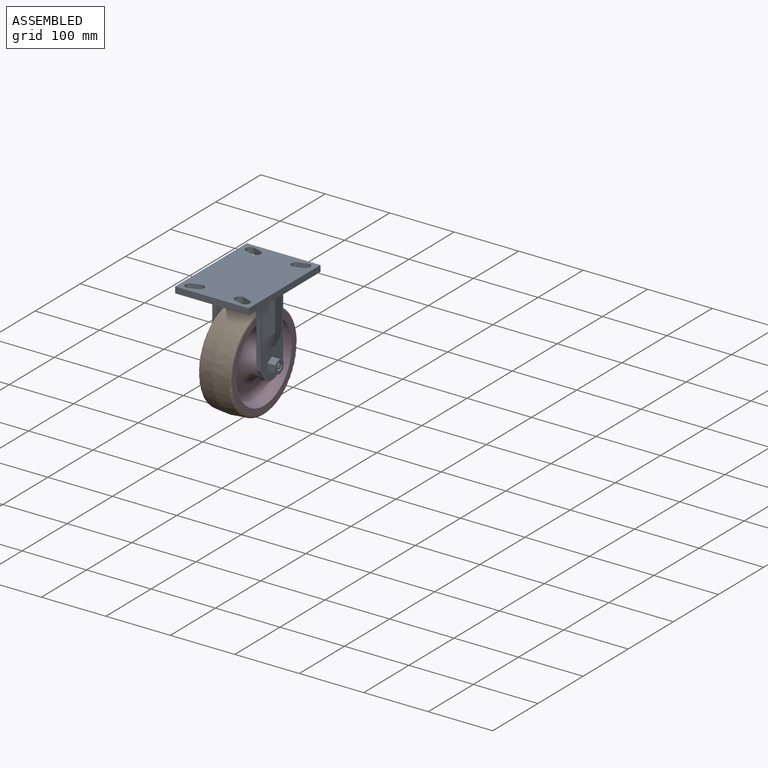
[diagram: assembled view]
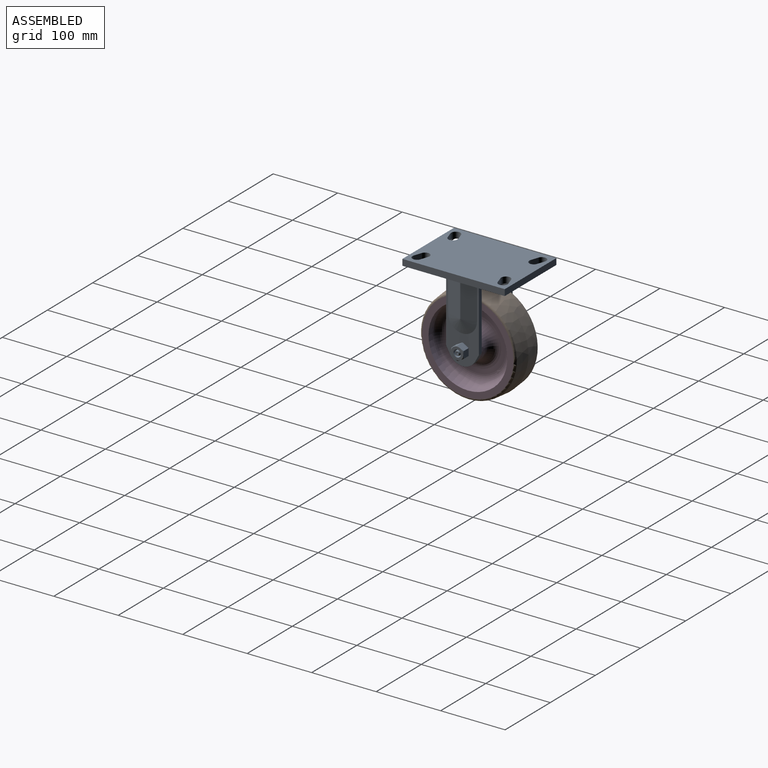
[diagram: assembled view, second angle]
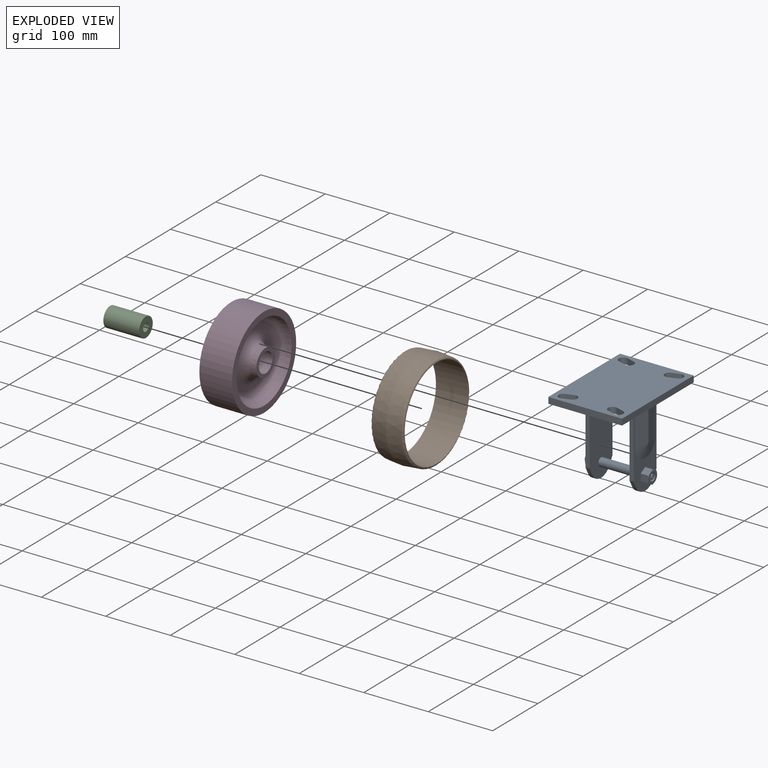
[diagram: exploded view]
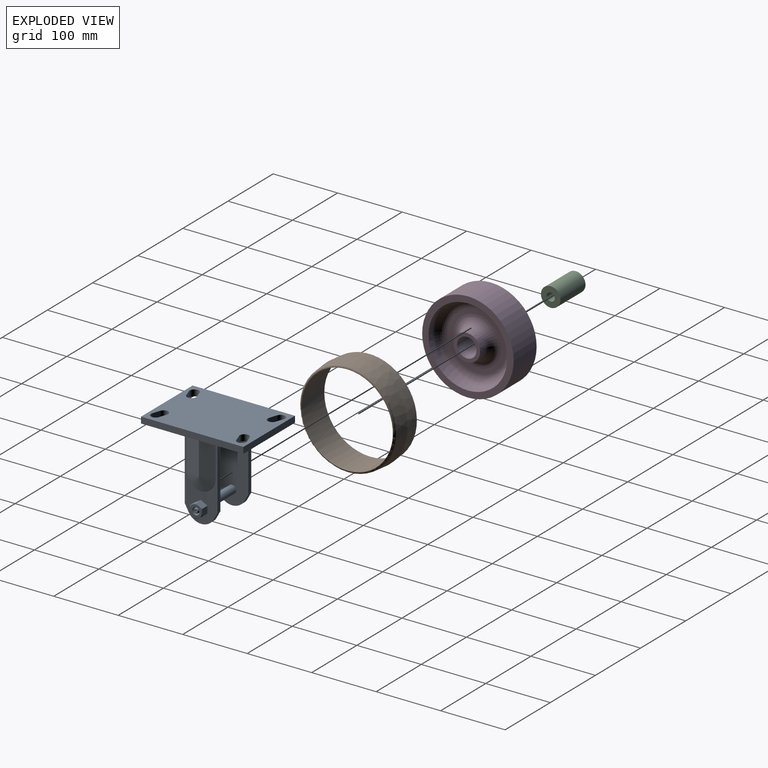
[diagram: exploded view, second angle]
ASSEMBLY  parts=4 mates=3
PART A: 83 faces, bbox 114.3x158.8x136.7 mm
  f0: plane 127.03x50.8mm, normal (1,0,0), area 2391.2mm2, adj f3,f15,f16,f17,f18,f19,f54,f55
  f1: plane 127.03x50.8mm, normal (-1,0,0), area 2391.2mm2, adj f3,f9,f10,f11,f12,f13,f38,f39
  f2: plane 19.05x19.05mm, normal (1,0,0), area 184.3mm2, adj f60,f61,f62,f63,f64,f65,f66
  f3: plane 158.75x114.3mm, normal (0,0,-1), area 15922mm2, adj f0,f1,f4,f5,f6,f7,f9,f13
  f4: plane 114.3x9.65mm, normal (0,1,0), area 1103.2mm2, adj f3,f5,f7,f8
  f5: plane 158.75x9.65mm, normal (-1,0,0), area 1532.3mm2, adj f3,f4,f6,f8
  f6: plane 114.3x9.65mm, normal (0,-1,0), area 1103.2mm2, adj f3,f5,f7,f8
  f7: plane 158.75x9.65mm, normal (1,0,0), area 1532.3mm2, adj f3,f4,f6,f8
  f8: plane 158.75x114.3mm, normal (0,0,1), area 16794.3mm2, adj f4,f5,f6,f7,f21,f22,f23,f24
  f9: plane 104.67x6.35mm, normal (0,1,0), area 664.7mm2, adj f1,f3,f10,f14
  f10: plane 10.62x6.35mm, normal (0,0.88,-0.47), area 76.6mm2, adj f1,f9,f11,f14
  f11: cylinder r=22.35mm len=39.34mm, axis (1,0,0), area 305.4mm2, adj f1,f10,f12,f14
  f12: plane 10.62x6.35mm, normal (0,-0.88,-0.47), area 76.6mm2, adj f1,f11,f13,f14
  f13: plane 104.67x6.35mm, normal (0,-1,0), area 664.7mm2, adj f1,f3,f12,f14
  f14: plane 127.03x50.8mm, normal (1,0,0), area 5997.9mm2, adj f3,f9,f10,f11,f12,f13,f37
  f15: plane 104.67x6.35mm, normal (0,1,0), area 664.7mm2, adj f0,f3,f16,f20
  f16: plane 10.62x6.35mm, normal (0,0.88,-0.47), area 76.6mm2, adj f0,f15,f17,f20
  f17: cylinder r=22.35mm len=39.34mm, axis (-1,0,0), area 305.4mm2, adj f0,f16,f18,f20
  f18: plane 10.62x6.35mm, normal (0,-0.88,-0.47), area 76.6mm2, adj f0,f17,f19,f20
  f19: plane 104.67x6.35mm, normal (0,-1,0), area 664.7mm2, adj f0,f3,f18,f20
  f20: plane 127.03x50.8mm, normal (-1,0,0), area 5997.9mm2, adj f3,f15,f16,f17,f18,f19,f37
  f21: plane 11.94x9.65mm, normal (-0.31,0.95,0), area 121.3mm2, adj f3,f8,f22,f24
  f22: cylinder r=7.11mm len=13.87mm, axis (0,0,1), area 215.7mm2, adj f3,f8,f21,f23
  f23: plane 11.94x9.65mm, normal (0.31,-0.95,0), area 121.3mm2, adj f3,f8,f22,f24
  f24: cylinder r=7.11mm len=13.87mm, axis (0,0,1), area 215.7mm2, adj f3,f8,f21,f23
  f25: plane 11.94x9.65mm, normal (-0.31,-0.95,0), area 121.3mm2, adj f3,f8,f26,f28
  f26: cylinder r=7.11mm len=13.87mm, axis (0,0,1), area 215.7mm2, adj f3,f8,f25,f27
  f27: plane 11.94x9.65mm, normal (0.31,0.95,0), area 121.3mm2, adj f3,f8,f26,f28
  f28: cylinder r=7.11mm len=13.87mm, axis (0,0,1), area 215.7mm2, adj f3,f8,f25,f27
  f29: plane 11.94x9.65mm, normal (-0.31,-0.95,0), area 121.3mm2, adj f3,f8,f30,f32
  f30: cylinder r=7.11mm len=13.87mm, axis (0,0,1), area 215.7mm2, adj f3,f8,f29,f31
  f31: plane 11.94x9.65mm, normal (0.31,0.95,0), area 121.3mm2, adj f3,f8,f30,f32
  f32: cylinder r=7.11mm len=13.87mm, axis (0,0,1), area 215.7mm2, adj f3,f8,f29,f31
  f33: plane 11.94x9.65mm, normal (-0.31,0.95,0), area 121.3mm2, adj f3,f8,f34,f36
  f34: cylinder r=7.11mm len=13.87mm, axis (0,0,1), area 215.7mm2, adj f3,f8,f33,f35
  f35: plane 11.94x9.65mm, normal (0.31,-0.95,0), area 121.3mm2, adj f3,f8,f34,f36
  f36: cylinder r=7.11mm len=13.87mm, axis (0,0,1), area 215.7mm2, adj f3,f8,f33,f35
  f37: cylinder r=6.35mm len=61.93mm, axis (-1,0,0), area 2470.7mm2, adj f14,f20
  f38: plane 11.94x11.01mm, normal (0,1,0), area 128.1mm2, adj f1,f39,f43,f47,f48
  f39: plane 11.94x9.53mm, normal (0,0.5,0.87), area 128.1mm2, adj f1,f38,f40,f48,f49
  f40: plane 11.94x9.53mm, normal (0,-0.5,0.87), area 128.1mm2, adj f1,f39,f41,f49,f50
  f41: plane 11.94x11.01mm, normal (0,-1,0), area 128.1mm2, adj f1,f40,f42,f50,f51
  f42: plane 11.94x9.53mm, normal (0,-0.5,-0.87), area 128.1mm2, adj f1,f41,f43,f51,f53
  f43: plane 11.94x9.53mm, normal (0,0.5,-0.87), area 128.1mm2, adj f1,f38,f42,f47,f53
  f44: plane 11.19x11.19mm, normal (-1,0,0), area 98.3mm2, adj f45
  f45: cone r=6.35mm half-angle=45deg, axis (1,0,0), area 40.1mm2, adj f44,f46
  f46: cylinder r=6.35mm len=12.7mm, axis (-1,0,0), area 96.5mm2, adj f45,f52
  f47: cone r=11.43mm half-angle=60deg, axis (1,0,0), area 5.6mm2, adj f38,f43,f52
  f48: cone r=11.43mm half-angle=60deg, axis (1,0,0), area 5.6mm2, adj f38,f39,f52
  f49: cone r=11.43mm half-angle=60deg, axis (1,0,0), area 5.6mm2, adj f39,f40,f52
  f50: cone r=11.43mm half-angle=60deg, axis (1,0,0), area 5.6mm2, adj f40,f41,f52
  f51: cone r=11.43mm half-angle=60deg, axis (1,0,0), area 5.6mm2, adj f41,f42,f52
  f52: plane 19.05x19.05mm, normal (-1,0,0), area 158.3mm2, adj f46,f47,f48,f49,f50,f51,f53
  f53: cone r=11.43mm half-angle=60deg, axis (1,0,0), area 5.6mm2, adj f42,f43,f52
  f54: plane 11.94x11.01mm, normal (0,1,0), area 128.1mm2, adj f0,f55,f59,f63,f64
  f55: plane 11.94x9.53mm, normal (0,0.5,0.87), area 128.1mm2, adj f0,f54,f56,f62,f63
  f56: plane 11.94x9.53mm, normal (0,-0.5,0.87), area 128.1mm2, adj f0,f55,f57,f61,f62
  f57: plane 11.94x11.01mm, normal (0,-1,0), area 128.1mm2, adj f0,f56,f58,f60,f61
  f58: plane 11.94x9.53mm, normal (0,-0.5,-0.87), area 128.1mm2, adj f0,f57,f59,f60,f65
  f59: plane 11.94x9.53mm, normal (0,0.5,-0.87), area 128.1mm2, adj f0,f54,f58,f64,f65
  f60: cone r=9.53mm half-angle=60deg, axis (-1,0,0), area 5.6mm2, adj f2,f57,f58
  f61: cone r=9.53mm half-angle=60deg, axis (-1,0,0), area 5.6mm2, adj f2,f56,f57
  f62: cone r=9.53mm half-angle=60deg, axis (-1,0,0), area 5.6mm2, adj f2,f55,f56
  f63: cone r=9.53mm half-angle=60deg, axis (-1,0,0), area 5.6mm2, adj f2,f54,f55
  f64: cone r=9.53mm half-angle=60deg, axis (-1,0,0), area 5.6mm2, adj f2,f54,f59
  f65: cone r=9.53mm half-angle=60deg, axis (-1,0,0), area 5.6mm2, adj f2,f58,f59
  f66: cylinder r=5.66mm len=11.33mm, axis (-1,0,0), area 283.2mm2, adj f2,f67
  f67: plane 11.33x11.33mm, normal (1,0,0), area 55.1mm2, adj f66,f68
  f68: cylinder r=3.81mm len=7.62mm, axis (-1,0,0), area 30.4mm2, adj f67,f69
  f69: plane 7.62x7.62mm, normal (1,0,0), area 16.4mm2, adj f68,f70
  f70: torus R=3.05mm, axis (-1,0,0), area 13.7mm2, adj f69,f71
  f71: cylinder r=2.54mm len=5.08mm, axis (-1,0,0), area 4.1mm2, adj f70,f72
  f72: torus R=3.05mm, axis (-1,0,0), area 13.7mm2, adj f71,f73
  f73: revolved ~8x8mm, area 135.3mm2, adj f72,f74
  f74: plane 6.1x6.1mm, normal (1,0,0), area 24.1mm2, adj f73,f76
  f75: plane 2.54x2.54mm, normal (1,0,0), area 5.1mm2, adj f76
  f76: cylinder r=1.27mm len=5.08mm, axis (-1,0,0), area 40.5mm2, adj f74,f75
  f77: cone r=22.35mm half-angle=77.2deg, axis (1,0,0), area 804.8mm2, adj f1,f78,f79
  f78: plane 58.93x22.35mm, normal (-0.98,0.22,0), area 1350.7mm2, adj f1,f3,f77,f79
  f79: plane 58.93x22.35mm, normal (-0.98,-0.22,0), area 1350.7mm2, adj f1,f3,f77,f78
  f80: plane 58.93x22.35mm, normal (0.98,0.22,0), area 1350.7mm2, adj f0,f3,f81,f82
  f81: plane 58.93x22.35mm, normal (0.98,-0.22,0), area 1350.7mm2, adj f0,f3,f80,f82
  f82: cone r=0mm half-angle=77.2deg, axis (-1,0,0), area 804.8mm2, adj f0,f80,f81
PART B: 5 faces, bbox 50.8x160.7x160.7 mm
  f0: cylinder r=70.95mm len=141.9mm, axis (1,0,0), area 22646.9mm2, adj f2,f4
  f1: cone r=76.2mm half-angle=5deg, axis (-1,0,0), area 10620.5mm2, adj f2,f3
  f2: torus R=70.95mm, axis (1,0,0), area 2246.4mm2, adj f0,f1
  f3: cone r=74.24mm half-angle=5deg, axis (1,0,0), area 10620.5mm2, adj f1,f4
  f4: torus R=70.95mm, axis (1,0,0), area 2246.4mm2, adj f0,f3
PART C: 4 faces, bbox 55.6x30.2x30.2 mm
  f0: plane 30.18x30.18mm, normal (-1,0,0), area 588.5mm2, adj f1,f3
  f1: cylinder r=15.09mm len=55.58mm, axis (1,0,0), area 5268.4mm2, adj f0,f2
  f2: plane 30.18x30.18mm, normal (1,0,0), area 588.5mm2, adj f1,f3
  f3: cylinder r=6.35mm len=55.58mm, axis (1,0,0), area 2217.4mm2, adj f0,f2
PART D: 16 faces, bbox 55.6x141.9x141.9 mm
  f0: plane 41.4x41.4mm, normal (-1,0,0), area 631.1mm2, adj f1,f14
  f1: cone r=20.7mm half-angle=5deg, axis (1,0,0), area 1110mm2, adj f0,f2
  f2: torus R=37.37mm, axis (1,0,0), area 4105.9mm2, adj f1,f3
  f3: plane 89.25x89.25mm, normal (-1,0,0), area 1867.8mm2, adj f2,f4
  f4: torus R=44.62mm, axis (1,0,0), area 8124.7mm2, adj f3,f5
  f5: cone r=60.56mm half-angle=5deg, axis (-1,0,0), area 2289.1mm2, adj f4,f6
  f6: plane 141.9x141.9mm, normal (-1,0,0), area 4092.2mm2, adj f5,f15
  f7: plane 141.9x141.9mm, normal (1,0,0), area 4092.2mm2, adj f8,f15
  f8: cone r=61.09mm half-angle=5deg, axis (1,0,0), area 2289.1mm2, adj f7,f9
  f9: torus R=44.62mm, axis (1,0,0), area 8124.7mm2, adj f8,f10
  f10: plane 89.25x89.25mm, normal (1,0,0), area 1867.8mm2, adj f9,f11
  f11: torus R=37.37mm, axis (1,0,0), area 4105.9mm2, adj f10,f12
  f12: cone r=21.43mm half-angle=5deg, axis (-1,0,0), area 1110mm2, adj f11,f13
  f13: plane 41.4x41.4mm, normal (1,0,0), area 631.1mm2, adj f12,f14
  f14: cylinder r=15.09mm len=55.58mm, axis (1,0,0), area 5268.4mm2, adj f0,f13
  f15: cylinder r=70.95mm len=141.9mm, axis (1,0,0), area 22646.9mm2, adj f6,f7
PLACE A t=(0,0,-114.3)mm
PLACE B t=(0,0,-114.33)mm
PLACE C t=(0,0,-114.33)mm
PLACE D t=(0,0,-114.33)mm
MATE fastened B.f0 <-> D.f15  axis (1,0,0) through (0,0,-114.33)mm
MATE revolute A.f17 <-> D.f1  axis (-1,0,0) through (27.79,0,-114.33)mm
MATE fastened D.f1 <-> C.f1  axis (1,0,0) through (27.79,0,-114.33)mm
